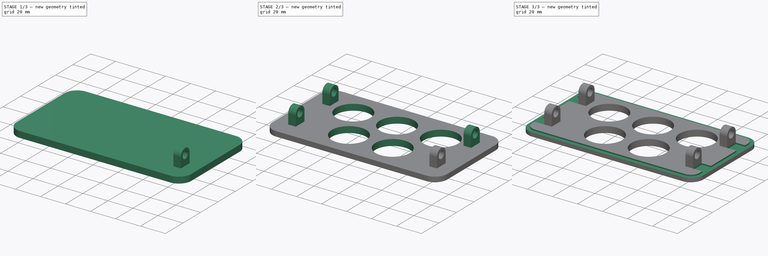
[diagram: build sequence overview — one tinted view per stage of 3, left to right]
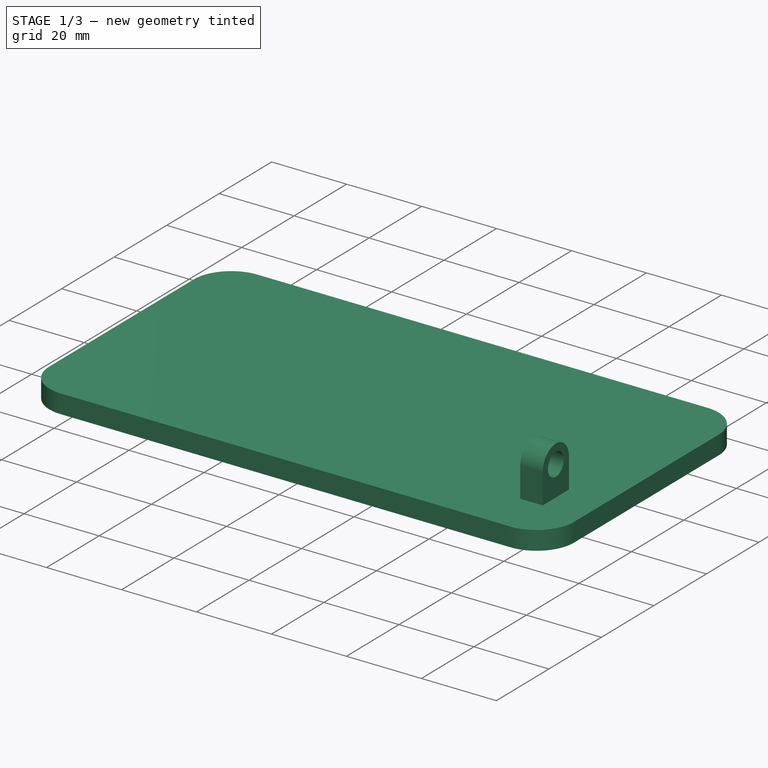
[diagram: stage 1 of 3 — iso view after this stage's code; geometry added in this stage tinted green]
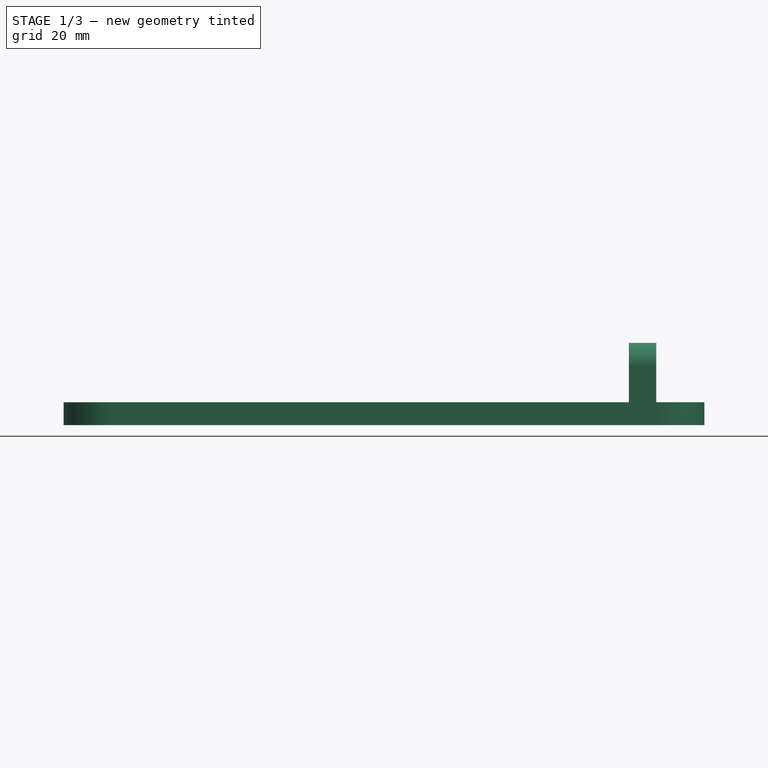
[diagram: stage 1 of 3 — front view after this stage's code; geometry added in this stage tinted green]
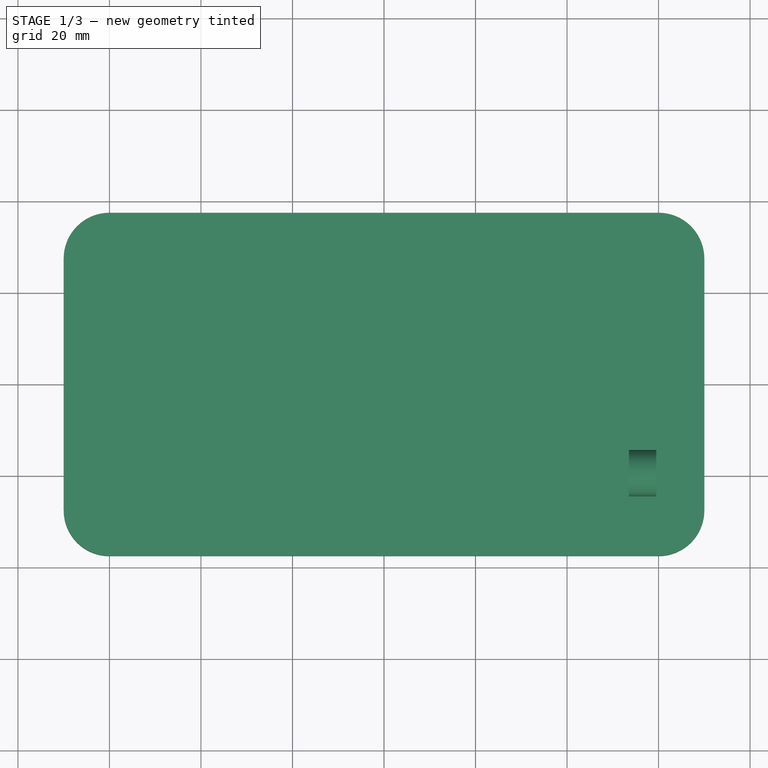
[diagram: stage 1 of 3 — top view after this stage's code; geometry added in this stage tinted green]
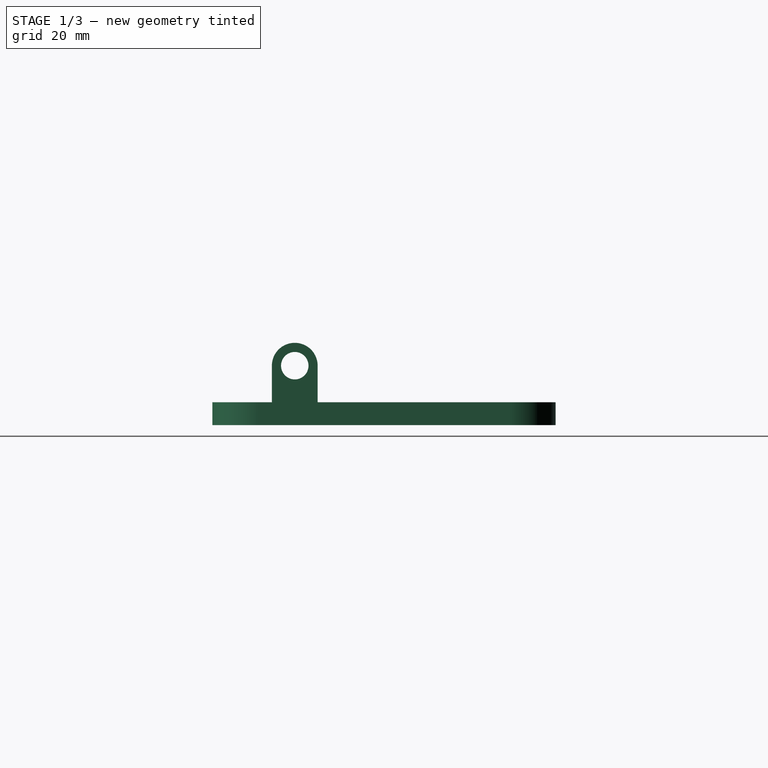
[diagram: stage 1 of 3 — right view after this stage's code; geometry added in this stage tinted green]
FCSTD DOCUMENT  (FreeCAD 0.22R38555 (Git))
Label: Button cover
License: All rights reserved
LicenseURL: https://en.wikipedia.org/wiki/All_rights_reserved
objects: Sketcher::SketchObject×4, PartDesign::Pocket×3, PartDesign::Pad×2, PartDesign::Mirrored×2, PartDesign::SubShapeBinder×1, PartDesign::Plane×1, PartDesign::MultiTransform×1, PartDesign::Chamfer×1, PartDesign::Body×1
note: 35 computed .brp shape members not serialized (recipe doc carries the construction recipe); baked Part::Feature solids carry a one-line shape summary decoded from their .brp
EXTERNAL_REF file=Music box v2.FCStd obj=Spreadsheet
EXTERNAL_REF file=Music box v2.FCStd obj=Body

FEATURE [PartDesign::SubShapeBinder] Binder
  BindCopyOnChange = 0
  BindMode = 0
  ClaimChildren = false
  Context = -> Body [Binder.]
  Fuse = false
  MakeFace = true
  OffsetFill = false
  OffsetIntersection = false
  OffsetJoinType = 0
  OffsetOpenResult = false
  PartialLoad = false
  Refine = true
  Relative = true
  Support = -> [<external Music box v2.FCStd>#Body[Mirrored002.Face3]]
  _Version = 2
FEATURE [Sketcher::SketchObject] Sketch
  ArcFitTolerance = 1e-06
  AttachmentSupport = -> [XY_Plane]
  ExternalGeometry = -> [Binder]
  FullyConstrained = true
  MakeInternals = false
  MapMode = 5
  expr: Constraints[28] = Music_box_v2#Spreadsheet.wall_thikness
  expr: Constraints[29] = Music_box_v2#Spreadsheet.wall_thikness
  expr: Constraints[35] = Music_box_v2#Spreadsheet.width
  sketch-geometry (36):
    g0: LineSegment StartX=-70 StartY=-27.5 StartZ=0 EndX=-70 EndY=27.5 EndZ=0
    g1: LineSegment [constr] StartX=-60 StartY=34.5 StartZ=0 EndX=60 EndY=34.5 EndZ=0
    g2: LineSegment [constr] StartX=-60 StartY=-34.5 StartZ=0 EndX=60 EndY=-34.5 EndZ=0
    g3: LineSegment StartX=-60 StartY=-37.5 StartZ=0 EndX=60 EndY=-37.5 EndZ=0
    g4: LineSegment [constr] StartX=-67 StartY=27.5 StartZ=0 EndX=-67 EndY=-27.5 EndZ=0
    g5: LineSegment [constr] StartX=67 StartY=27.5 StartZ=0 EndX=67 EndY=-27.5 EndZ=0
    g6: LineSegment StartX=70 StartY=27.5 StartZ=0 EndX=70 EndY=-27.5 EndZ=0
    g7: LineSegment StartX=-60 StartY=37.5 StartZ=0 EndX=60 EndY=37.5 EndZ=0
    g8: ArcOfCircle CenterX=-60 CenterY=-27.5 CenterZ=0 NormalX=0 NormalY=0 NormalZ=1 AngleXU=0 Radius=10 StartAngle=3.1416 EndAngle=4.71239
    g9: ArcOfCircle [constr] CenterX=-60 CenterY=-27.5 CenterZ=0 NormalX=0 NormalY=0 NormalZ=1 AngleXU=0 Radius=7 StartAngle=3.1416 EndAngle=4.71239
    g10: ArcOfCircle CenterX=60 CenterY=-27.5 CenterZ=0 NormalX=0 NormalY=0 NormalZ=1 AngleXU=0 Radius=10 StartAngle=4.71239 EndAngle=6.28319
    g11: ArcOfCircle [constr] CenterX=60 CenterY=-27.5 CenterZ=0 NormalX=0 NormalY=0 NormalZ=1 AngleXU=0 Radius=7 StartAngle=4.71239 EndAngle=6.28319
    g12: ArcOfCircle [constr] CenterX=60 CenterY=27.5 CenterZ=0 NormalX=0 NormalY=0 NormalZ=1 AngleXU=0 Radius=7 StartAngle=2e-16 EndAngle=1.5708
    g13: ArcOfCircle CenterX=60 CenterY=27.5 CenterZ=0 NormalX=0 NormalY=0 NormalZ=1 AngleXU=0 Radius=10 StartAngle=0 EndAngle=1.5708
    g14: ArcOfCircle CenterX=-60 CenterY=27.5 CenterZ=0 NormalX=0 NormalY=0 NormalZ=1 AngleXU=0 Radius=10 StartAngle=1.5708 EndAngle=3.14159
    g15: ArcOfCircle [constr] CenterX=-60 CenterY=27.5 CenterZ=0 NormalX=0 NormalY=0 NormalZ=1 AngleXU=0 Radius=7 StartAngle=1.5708 EndAngle=3.14159
    g16: LineSegment [constr] StartX=-60 StartY=-37.5 StartZ=0 EndX=-60 EndY=-34.5 EndZ=0
    g17: LineSegment [constr] StartX=-60 StartY=34.5 StartZ=0 EndX=-60 EndY=37.5 EndZ=0
    g18: LineSegment [constr] StartX=60 StartY=34.5 StartZ=0 EndX=60 EndY=37.5 EndZ=0
    g19: LineSegment [constr] StartX=67 StartY=27.5 StartZ=0 EndX=70 EndY=27.5 EndZ=0
    g20: LineSegment [constr] StartX=60 StartY=-34.5 StartZ=0 EndX=60 EndY=-37.5 EndZ=0
    g21: Circle [constr] CenterX=-17.5 CenterY=-15 CenterZ=0 NormalX=0 NormalY=0 NormalZ=1 AngleXU=0 Radius=16.5
    g22: Circle CenterX=-17.5 CenterY=-15 CenterZ=0 NormalX=0 NormalY=0 NormalZ=1 AngleXU=0 Radius=13.75
    g23: Circle CenterX=17.5 CenterY=-15 CenterZ=0 NormalX=0 NormalY=0 NormalZ=1 AngleXU=0 Radius=13.75
    g24: Circle [constr] CenterX=17.5 CenterY=-15 CenterZ=0 NormalX=0 NormalY=0 NormalZ=1 AngleXU=0 Radius=16.5
    g25: LineSegment [constr] StartX=-17.5 StartY=-15 StartZ=0 EndX=17.5 EndY=-15 EndZ=0
    g26: Circle [constr] CenterX=-35 CenterY=15 CenterZ=0 NormalX=0 NormalY=0 NormalZ=1 AngleXU=0 Radius=17
    g27: Circle CenterX=-35 CenterY=15 CenterZ=0 NormalX=0 NormalY=0 NormalZ=1 AngleXU=0 Radius=13.75
    g28: Circle CenterX=0 CenterY=15 CenterZ=0 NormalX=0 NormalY=0 NormalZ=1 AngleXU=0 Radius=13.75
    g29: Circle [constr] CenterX=0 CenterY=15 CenterZ=0 NormalX=0 NormalY=0 NormalZ=1 AngleXU=0 Radius=17
    g30: Circle CenterX=35 CenterY=15 CenterZ=0 NormalX=0 NormalY=0 NormalZ=1 AngleXU=0 Radius=13.75
    g31: Circle [constr] CenterX=35 CenterY=15 CenterZ=0 NormalX=0 NormalY=0 NormalZ=1 AngleXU=0 Radius=17
    g32: LineSegment [constr] StartX=-35 StartY=15 StartZ=0 EndX=0 EndY=15 EndZ=0
    g33: LineSegment [constr] StartX=0 StartY=15 StartZ=0 EndX=35 EndY=15 EndZ=0
    g34: GeomPoint [constr] X=0 Y=-15 Z=0
    g35: LineSegment [constr] StartX=0 StartY=-15 StartZ=0 EndX=0 EndY=15 EndZ=0
  constraints (86):
    c: Coincident(g1,g-6)
    c: Coincident(g2,g-32)
    c: Coincident(g2,g-32)
    c: Coincident(g7,g-30)
    c: Coincident(g7,g-30)
    c: Coincident(g8,g-26)
    c: Coincident(g8,g3)
    c: Coincident(g8,g0)
    c: Coincident(g9,g8)
    c: Coincident(g9,g2)
    c: Coincident(g9,g4)
    c: Coincident(g10,g-34)
    c: Coincident(g10,g3)
    c: Coincident(g10,g6)
    c: Coincident(g11,g10)
    c: Coincident(g11,g2)
    c: Coincident(g11,g5)
    c: Coincident(g12,g-12)
    c: Coincident(g12,g1)
    c: Coincident(g13,g12)
    c: Coincident(g13,g6)
    c: Coincident(g13,g7)
    c: Coincident(g14,g-29)
    c: Coincident(g14,g7)
    c: Coincident(g14,g0)
    c: Coincident(g15,g14)
    c: Coincident(g15,g1)
    c: Coincident(g15,g4)
    c: Distance(g3,g2) = 3
    c: Distance(g0,g4) = 3
    c: Horizontal(g3)
    c: Vertical(g4)
    c: Vertical(g0)
    c: Vertical(g5)
    c: Vertical(g6)
    c: Distance(g6,g0) = 140
    c: Coincident(g16,g3)
    c: Coincident(g16,g2)
    c: Vertical(g16)
    c: Coincident(g17,g1)
    c: Coincident(g17,g7)
    c: Coincident(g18,g1)
    c: Coincident(g18,g7)
    c: Coincident(g19,g6)
    c: Horizontal(g19)
    c: Coincident(g20,g2)
    c: Coincident(g20,g3)
    c: Vertical(g20)
    c: Vertical(g18)
    c: Coincident(g22,g21)
    c: Diameter(g21) = 33
    c: Diameter(g22) = 27.5
    c: Coincident(g23,g24)
    c: Diameter(g24) = 33
    c: Diameter(g23) = 27.5
    c: Coincident(g25,g21)
    c: Coincident(g25,g23)
    c: Horizontal(g25)
    c: Coincident(g27,g26)
    c: Diameter(g26) = 34
    c: Diameter(g27) = 27.5
    c: Coincident(g28,g29)
    c: Coincident(g30,g31)
    c: Equal(g26,g29)
    c: Equal(g26,g31)
    c: Equal(g27,g28)
    c: Equal(g27,g30)
    c: Coincident(g32,g26)
    c: Coincident(g32,g28)
    c: Horizontal(g32)
    c: Coincident(g33,g28)
    c: Coincident(g33,g30)
    c: Horizontal(g33)
    c: Equal(g33,g32)
    c: Equal(g25,g33)
    c: Symmetric(g25,g25,g34)
    c: Coincident(g35,g34)
    c: Coincident(g35,g28)
    c: Vertical(g35)
    c: PointOnObject(g28,g-2)
    c: DistanceY(g34,g28) = 30
    c: DistanceX(g21,g23) = 35
    c: DistanceY(g34,g-1) = 15
    c: Coincident(g5,g-10)
    c: Coincident(g19,g5)
    c: Coincident(g12,g5)
FEATURE [PartDesign::Pad] Pad
  Direction = (0,0,1)
  Length = 5
  Length2 = 10
  Profile = -> Sketch [Edge1,Edge2,Edge3,Edge4,Edge5,Edge6,Edge7,Edge8]
  ReferenceAxis = -> Sketch [N_Axis]
  Refine = true
  Reversed = true
  Suppressed = false
  Type = 0
FEATURE [PartDesign::Plane] DatumPlane
  AttachmentOffset = pos=(0,0,-7.5) rot=(0,0,1;0rad)
  AttachmentSupport = -> [Binder]
  Length = 87.2474
  MapMode = 7
  Placement = pos=(59.5,14.5,1.49e-14) rot=(0.57735,0.57735,0.57735;2.0944rad)
  ResizeMode = 0
  Width = 62.2474
FEATURE [Sketcher::SketchObject] Sketch001
  ArcFitTolerance = 1e-06
  AttachmentSupport = -> [DatumPlane]
  ExternalGeometry = -> [Binder]
  FullyConstrained = true
  MakeInternals = false
  MapMode = 5
  Placement = pos=(59.5,14.5,1.49e-14) rot=(0.57735,0.57735,0.57735;2.0944rad)
  sketch-geometry (5):
    g0: LineSegment StartX=-39 StartY=-1.8e-15 StartZ=0 EndX=-29 EndY=-1.8e-15 EndZ=0
    g1: LineSegment StartX=-29 StartY=-1.8e-15 StartZ=0 EndX=-29 EndY=8 EndZ=0
    g2: LineSegment StartX=-39 StartY=8 StartZ=0 EndX=-39 EndY=-1.8e-15 EndZ=0
    g3: ArcOfCircle CenterX=-34 CenterY=8 CenterZ=0 NormalX=0 NormalY=0 NormalZ=1 AngleXU=0 Radius=5 StartAngle=6.28319 EndAngle=9.42478
    g4: Circle CenterX=-34 CenterY=8 CenterZ=0 NormalX=0 NormalY=0 NormalZ=1 AngleXU=0 Radius=3
  constraints (14):
    c: Coincident(g0,g1)
    c: Coincident(g2,g0)
    c: Horizontal(g0)
    c: Vertical(g1)
    c: Vertical(g2)
    c: Coincident(g0,g-4)
    c: DistanceX(g2,g1) = 10
    c: DistanceY(g2,g2) = 8
    c: Coincident(g3,g2)
    c: Coincident(g3,g1)
    c: DistanceY(g0,g3) = 8
    c: Radius(g3) = 5
    c: Coincident(g4,g3)
    c: Diameter(g4) = 6
FEATURE [PartDesign::Pad] Pad001
  BaseFeature = -> Pad
  Direction = (1,0,0)
  Length = 6
  Length2 = 10
  Profile = -> Sketch001
  ReferenceAxis = -> Sketch001 [N_Axis]
  Refine = true
  Reversed = true
  Suppressed = false
  Type = 0
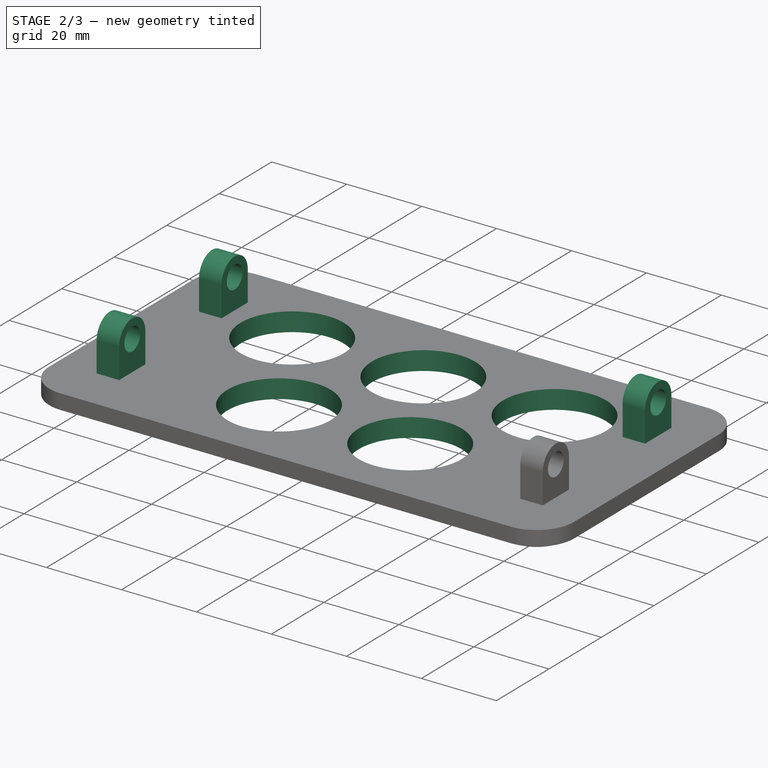
[diagram: stage 2 of 3 — iso view after this stage's code; geometry added in this stage tinted green]
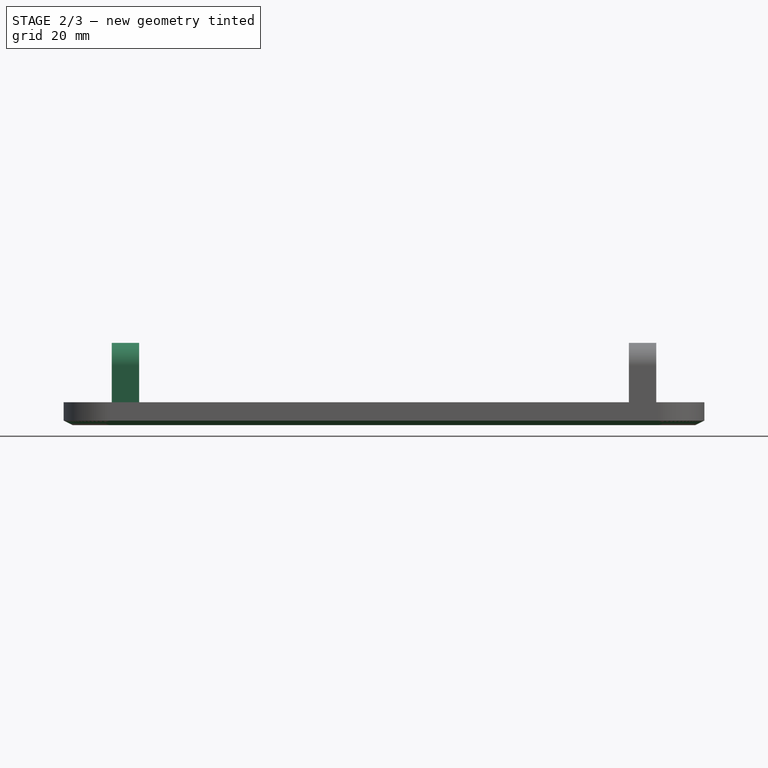
[diagram: stage 2 of 3 — front view after this stage's code; geometry added in this stage tinted green]
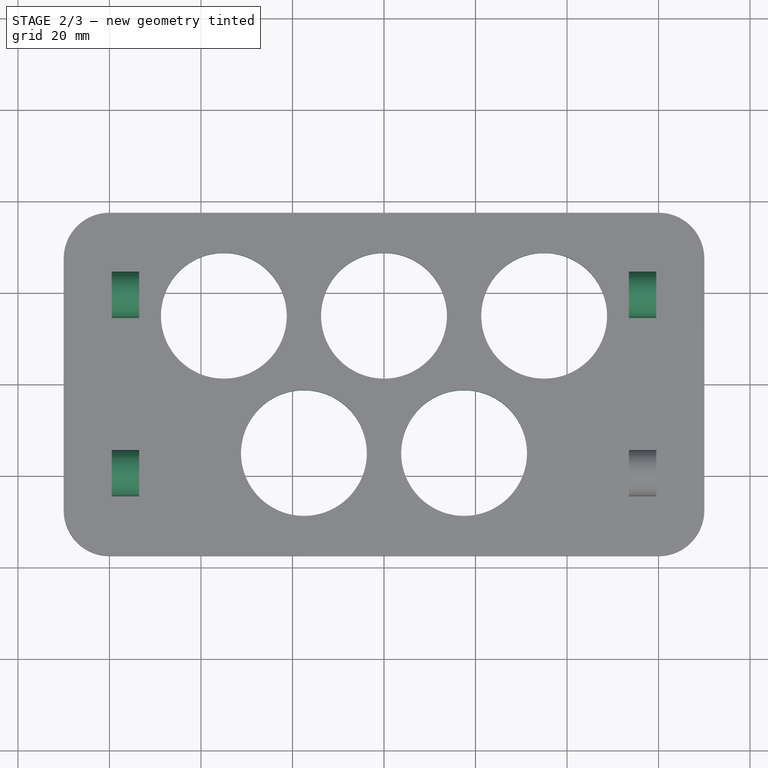
[diagram: stage 2 of 3 — top view after this stage's code; geometry added in this stage tinted green]
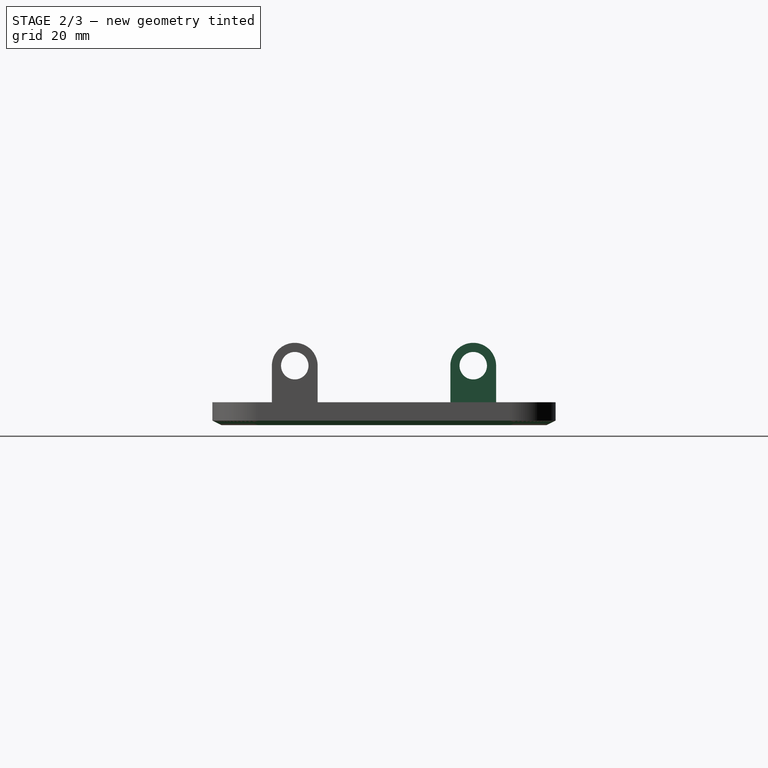
[diagram: stage 2 of 3 — right view after this stage's code; geometry added in this stage tinted green]
FEATURE [PartDesign::Mirrored] Mirrored
  MirrorPlane = -> YZ_Plane
  Refine = true
  Suppressed = false
  TransformMode = 0
FEATURE [PartDesign::Mirrored] Mirrored001
  MirrorPlane = -> XZ_Plane
  Refine = true
  Suppressed = false
  TransformMode = 0
FEATURE [PartDesign::MultiTransform] MultiTransform
  BaseFeature = -> Pad001
  Originals = -> [Pad001]
  Refine = true
  Suppressed = false
  TransformMode = 0
  Transformations = -> [Mirrored,Mirrored001]
FEATURE [PartDesign::Pocket] Pocket
  BaseFeature = -> MultiTransform
  Direction = (0,0,-1)
  Length = 5
  Length2 = 5
  Profile = -> Sketch [Edge10,Edge13,Edge12,Edge11,Edge9]
  ReferenceAxis = -> Sketch [N_Axis]
  Refine = true
  Suppressed = false
  Type = 0
FEATURE [PartDesign::Chamfer] Chamfer
  Angle = 45
  Base = -> Pocket [Edge7,Edge37,Edge39,Edge4,Edge10,Edge41,Edge40,Edge38]
  BaseFeature = -> Pocket
  ChamferType = 1
  FlipDirection = false
  Refine = true
  Size = 1
  Size2 = 2
  SupportTransform = false
  Suppressed = false
  UseAllEdges = false
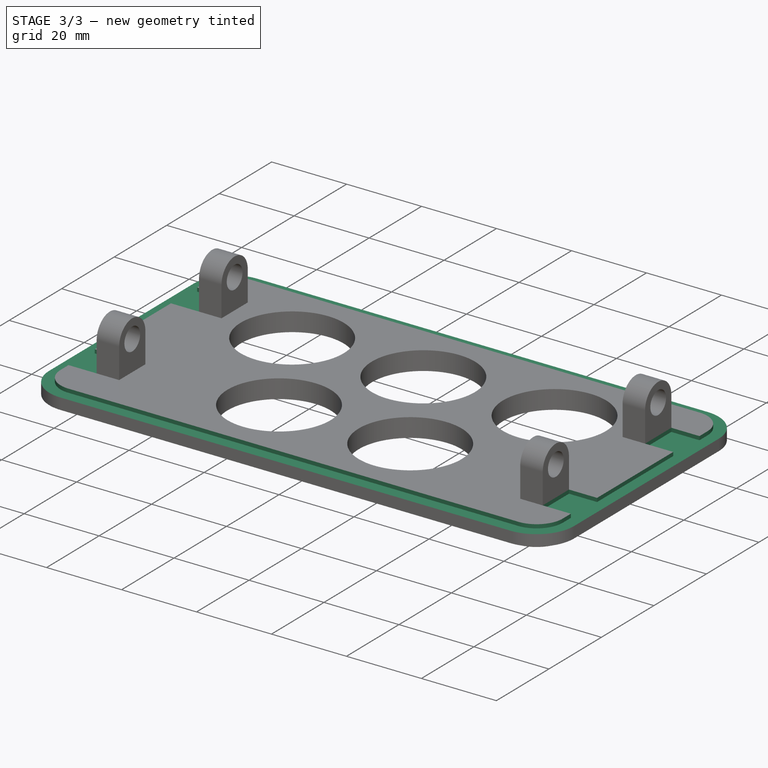
[diagram: stage 3 of 3 — iso view after this stage's code; geometry added in this stage tinted green]
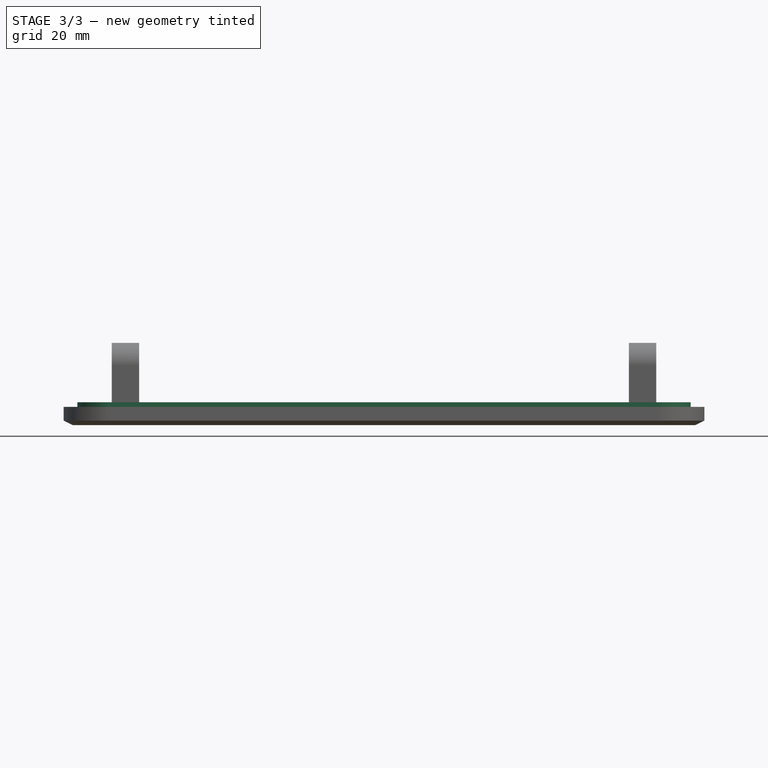
[diagram: stage 3 of 3 — front view after this stage's code; geometry added in this stage tinted green]
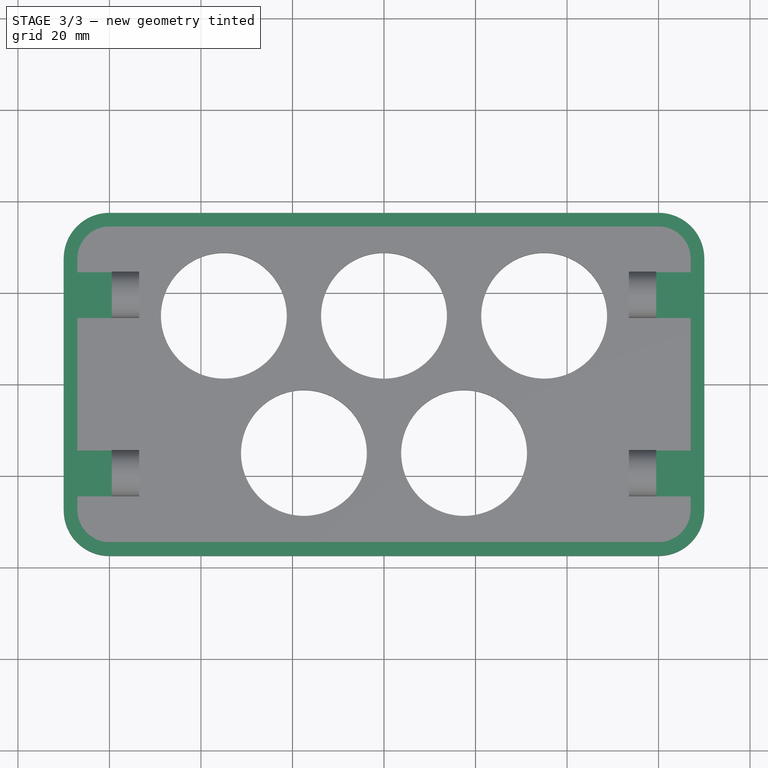
[diagram: stage 3 of 3 — top view after this stage's code; geometry added in this stage tinted green]
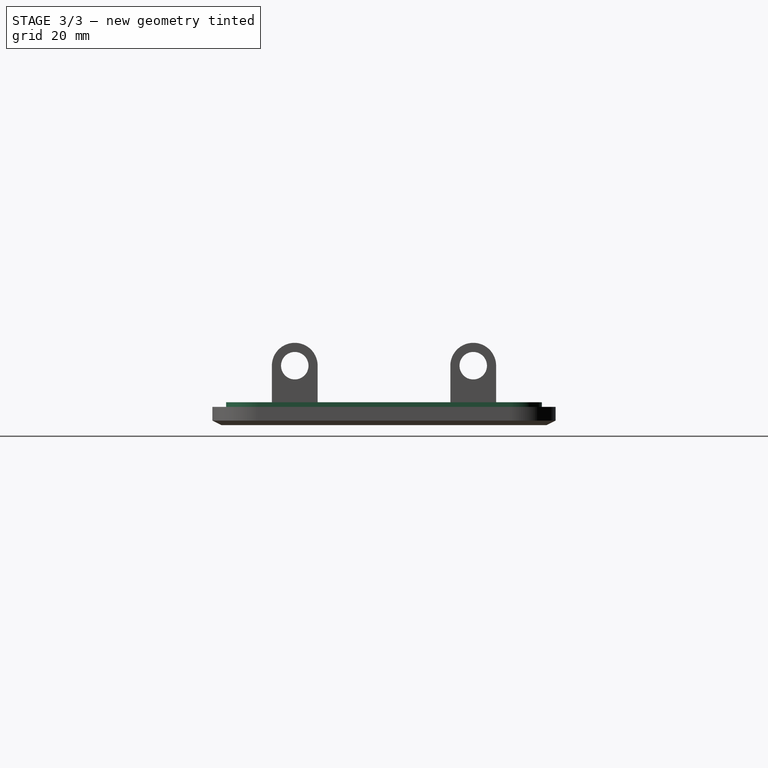
[diagram: stage 3 of 3 — right view after this stage's code; geometry added in this stage tinted green]
FEATURE [Sketcher::SketchObject] Sketch002
  ArcFitTolerance = 1e-06
  AttachmentSupport = -> [Chamfer]
  ExternalGeometry = -> [Chamfer]
  FullyConstrained = true
  MakeInternals = false
  MapMode = 5
  sketch-geometry (16):
    g0: ArcOfCircle CenterX=-60 CenterY=27.5 CenterZ=0 NormalX=0 NormalY=0 NormalZ=1 AngleXU=0 Radius=10 StartAngle=1.57079 EndAngle=3.14159
    g1: ArcOfCircle CenterX=60 CenterY=27.5 CenterZ=0 NormalX=0 NormalY=0 NormalZ=1 AngleXU=0 Radius=10 StartAngle=6.28319 EndAngle=7.85398
    g2: ArcOfCircle CenterX=60 CenterY=-27.5 CenterZ=0 NormalX=0 NormalY=0 NormalZ=1 AngleXU=0 Radius=10 StartAngle=4.71239 EndAngle=6.28319
    g3: ArcOfCircle CenterX=-60 CenterY=-27.5 CenterZ=0 NormalX=0 NormalY=0 NormalZ=1 AngleXU=0 Radius=10 StartAngle=3.1416 EndAngle=4.71239
    g4: LineSegment StartX=-70 StartY=-27.5 StartZ=0 EndX=-70 EndY=27.5 EndZ=0
    g5: LineSegment StartX=-60 StartY=37.5 StartZ=0 EndX=60 EndY=37.5 EndZ=0
    g6: LineSegment StartX=70 StartY=27.5 StartZ=0 EndX=70 EndY=-27.5 EndZ=0
    g7: LineSegment StartX=60 StartY=-37.5 StartZ=0 EndX=-60 EndY=-37.5 EndZ=0
    g8: LineSegment StartX=-60 StartY=-34.5 StartZ=0 EndX=60 EndY=-34.5 EndZ=0
    g9: LineSegment StartX=67 StartY=-27.5 StartZ=0 EndX=67 EndY=27.5 EndZ=0
    g10: LineSegment StartX=60 StartY=34.5 StartZ=0 EndX=-60 EndY=34.5 EndZ=0
    g11: LineSegment StartX=-67 StartY=27.5 StartZ=0 EndX=-67 EndY=-27.5 EndZ=0
    g12: ArcOfCircle CenterX=-60 CenterY=-27.5 CenterZ=0 NormalX=0 NormalY=0 NormalZ=1 AngleXU=0 Radius=7 StartAngle=3.1416 EndAngle=4.71239
    g13: ArcOfCircle CenterX=60 CenterY=-27.5 CenterZ=0 NormalX=0 NormalY=0 NormalZ=1 AngleXU=0 Radius=7 StartAngle=4.71239 EndAngle=6.28319
    g14: ArcOfCircle CenterX=60 CenterY=27.5 CenterZ=0 NormalX=0 NormalY=0 NormalZ=1 AngleXU=0 Radius=7 StartAngle=6.28319 EndAngle=7.85398
    g15: ArcOfCircle CenterX=-60 CenterY=27.5 CenterZ=0 NormalX=0 NormalY=0 NormalZ=1 AngleXU=0 Radius=7.00002 StartAngle=1.5708 EndAngle=3.14159
  constraints (44):
    c: Coincident(g0,g-9)
    c: Coincident(g0,g-9)
    c: PointOnObject(g0,g-4)
    c: Coincident(g1,g-5)
    c: Coincident(g1,g-5)
    c: Coincident(g2,g-7)
    c: Coincident(g2,g-7)
    c: Coincident(g3,g-10)
    c: PointOnObject(g3,g-8)
    c: Coincident(g3,g-10)
    c: Coincident(g4,g3)
    c: Coincident(g4,g0)
    c: Coincident(g6,g1)
    c: Coincident(g6,g2)
    c: Coincident(g7,g2)
    c: Coincident(g7,g3)
    c: Horizontal(g7)
    c: Coincident(g5,g0)
    c: Coincident(g5,g1)
    c: PointOnObject(g1,g-6)
    c: Horizontal(g8)
    c: Vertical(g9)
    c: Horizontal(g10)
    c: Vertical(g11)
    c: Horizontal(g11,g3)
    c: Horizontal(g0,g11)
    c: Vertical(g10,g0)
    c: Vertical(g8,g3)
    c: Vertical(g2,g8)
    c: Horizontal(g9,g2)
    c: Horizontal(g9,g1)
    c: Vertical(g10,g1)
    c: Distance(g9,g1) = 3
    c: Coincident(g12,g11)
    c: Coincident(g12,g8)
    c: Coincident(g12,g3)
    c: Coincident(g13,g8)
    c: Coincident(g13,g9)
    c: Coincident(g2,g13)
    c: Coincident(g14,g9)
    c: Coincident(g14,g1)
    c: Coincident(g10,g14)
    c: Coincident(g15,g11)
    c: Tangent(g15,g10) = -1.5708
FEATURE [PartDesign::Pocket] Pocket001
  BaseFeature = -> Chamfer
  Direction = (0,0,-1)
  Length = 1
  Length2 = 5
  Profile = -> Sketch002
  ReferenceAxis = -> Sketch002 [N_Axis]
  Refine = true
  Suppressed = false
  Type = 0
FEATURE [Sketcher::SketchObject] Sketch003
  ArcFitTolerance = 1e-06
  AttachmentSupport = -> [Pocket001]
  ExternalGeometry = -> [Pocket001]
  FullyConstrained = true
  MakeInternals = false
  MapMode = 5
  sketch-geometry (16):
    g0: LineSegment StartX=-59.5 StartY=24.5 StartZ=0 EndX=-67 EndY=24.5 EndZ=0
    g1: LineSegment StartX=-67 StartY=24.5 StartZ=0 EndX=-67 EndY=14.5 EndZ=0
    g2: LineSegment StartX=-67 StartY=14.5 StartZ=0 EndX=-59.5 EndY=14.5 EndZ=0
    g3: LineSegment StartX=-59.5 StartY=14.5 StartZ=0 EndX=-59.5 EndY=24.5 EndZ=0
    g4: LineSegment StartX=-59.5 StartY=-14.5 StartZ=0 EndX=-67 EndY=-14.5 EndZ=0
    g5: LineSegment StartX=-67 StartY=-14.5 StartZ=0 EndX=-67 EndY=-24.5 EndZ=0
    g6: LineSegment StartX=-67 StartY=-24.5 StartZ=0 EndX=-59.5 EndY=-24.5 EndZ=0
    g7: LineSegment StartX=-59.5 StartY=-24.5 StartZ=0 EndX=-59.5 EndY=-14.5 EndZ=0
    g8: LineSegment StartX=59.5 StartY=-14.5 StartZ=0 EndX=59.5 EndY=-24.5 EndZ=0
    g9: LineSegment StartX=59.5 StartY=-24.5 StartZ=0 EndX=67 EndY=-24.5 EndZ=0
    g10: LineSegment StartX=67 StartY=-24.5 StartZ=0 EndX=67 EndY=-14.5 EndZ=0
    g11: LineSegment StartX=67 StartY=-14.5 StartZ=0 EndX=59.5 EndY=-14.5 EndZ=0
    g12: LineSegment StartX=59.5 StartY=24.5 StartZ=0 EndX=59.5 EndY=14.5 EndZ=0
    g13: LineSegment StartX=59.5 StartY=14.5 StartZ=0 EndX=67 EndY=14.5 EndZ=0
    g14: LineSegment StartX=67 StartY=14.5 StartZ=0 EndX=67 EndY=24.5 EndZ=0
    g15: LineSegment StartX=67 StartY=24.5 StartZ=0 EndX=59.5 EndY=24.5 EndZ=0
  constraints (40):
    c: Coincident(g0,g1)
    c: Coincident(g1,g2)
    c: Coincident(g2,g3)
    c: Coincident(g3,g0)
    c: Horizontal(g0)
    c: Horizontal(g2)
    c: Vertical(g1)
    c: Coincident(g0,g-4)
    c: PointOnObject(g1,g-3)
    c: Coincident(g4,g5)
    c: Coincident(g5,g6)
    c: Coincident(g6,g7)
    c: Coincident(g7,g4)
    c: Horizontal(g4)
    c: Horizontal(g6)
    c: Vertical(g5)
    c: Coincident(g4,g-5)
    c: PointOnObject(g5,g-3)
    c: Coincident(g8,g9)
    c: Coincident(g9,g10)
    c: Coincident(g10,g11)
    c: Coincident(g11,g8)
    c: Vertical(g10)
    c: Horizontal(g9)
    c: Horizontal(g11)
    c: Coincident(g8,g-6)
    c: PointOnObject(g9,g-7)
    c: Coincident(g12,g13)
    c: Coincident(g13,g14)
    c: Coincident(g14,g15)
    c: Coincident(g15,g12)
    c: Vertical(g14)
    c: Horizontal(g13)
    c: Horizontal(g15)
    c: Coincident(g12,g-8)
    c: PointOnObject(g13,g-7)
    c: Coincident(g12,g-8)
    c: Coincident(g8,g-6)
    c: Coincident(g6,g-5)
    c: Coincident(g2,g-4)
FEATURE [PartDesign::Pocket] Pocket002
  BaseFeature = -> Pocket001
  Direction = (0,0,-1)
  Length = 1
  Length2 = 5
  Profile = -> Sketch003
  ReferenceAxis = -> Sketch003 [N_Axis]
  Refine = true
  Suppressed = false
  Type = 0
FEATURE [PartDesign::Body] Body
  AllowCompound = false
  Group = -> [Sketch,Binder,Pad,DatumPlane,Sketch001,Pad001,MultiTransform,Mirrored,Mirrored001,Pocket,Chamfer,Sketch002,Pocket001,Sketch003,Pocket002]
  Origin = -> Origin
  Tip = -> Pocket002
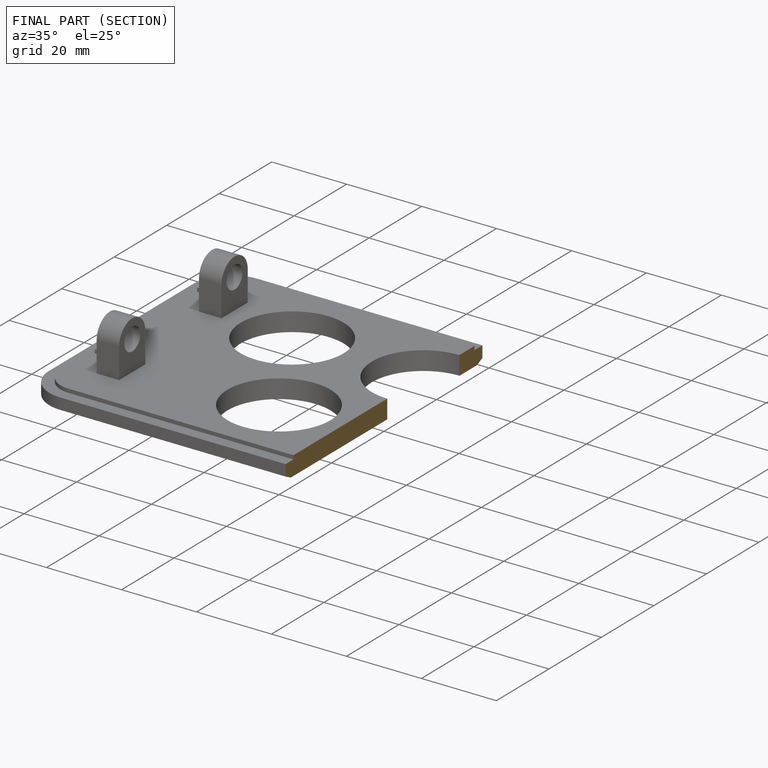
[diagram: finished part — half-section view (interior)]
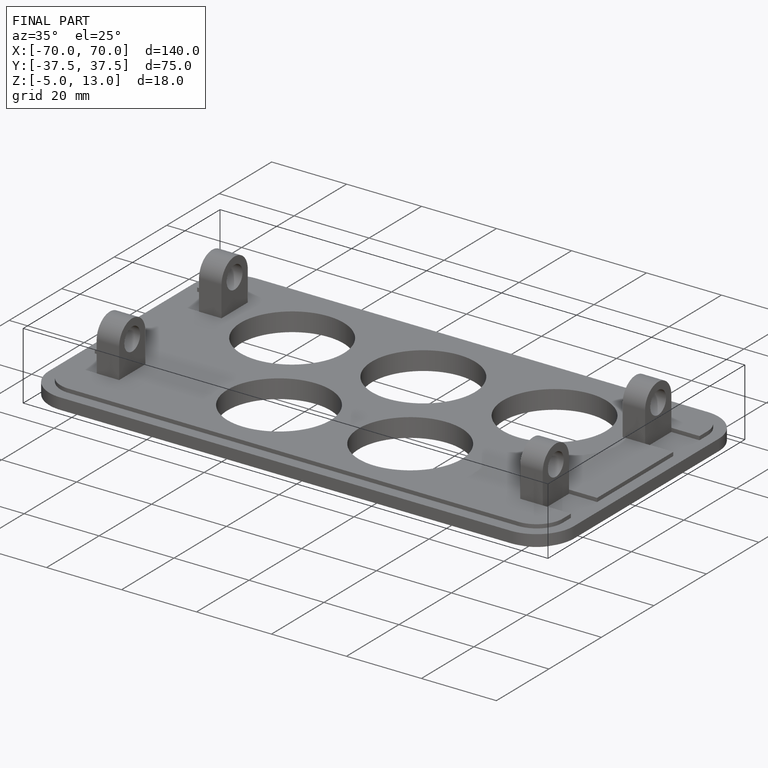
[diagram: finished part — iso view with bounding-box wireframe]
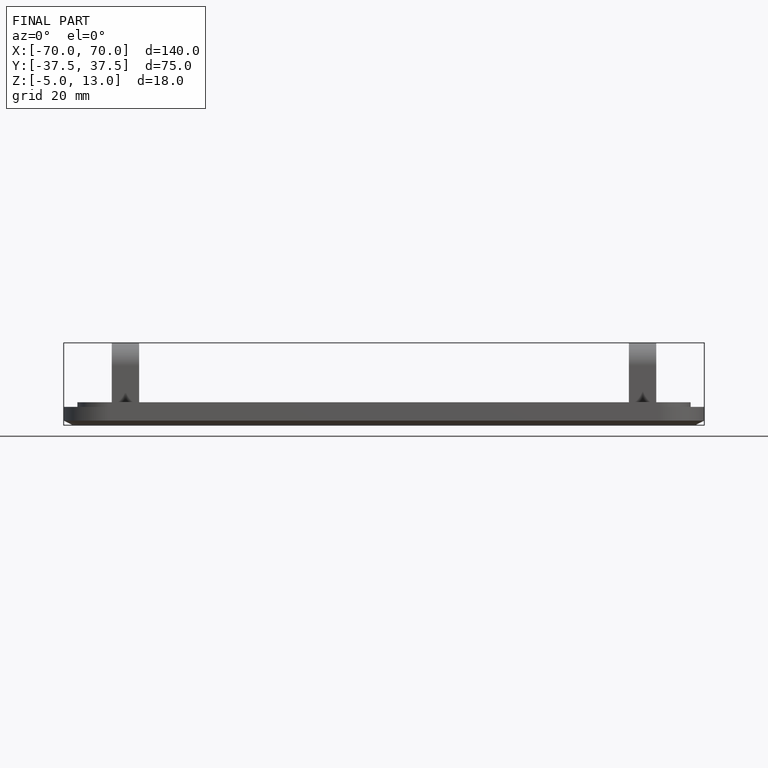
[diagram: finished part — front view with bounding-box wireframe]
